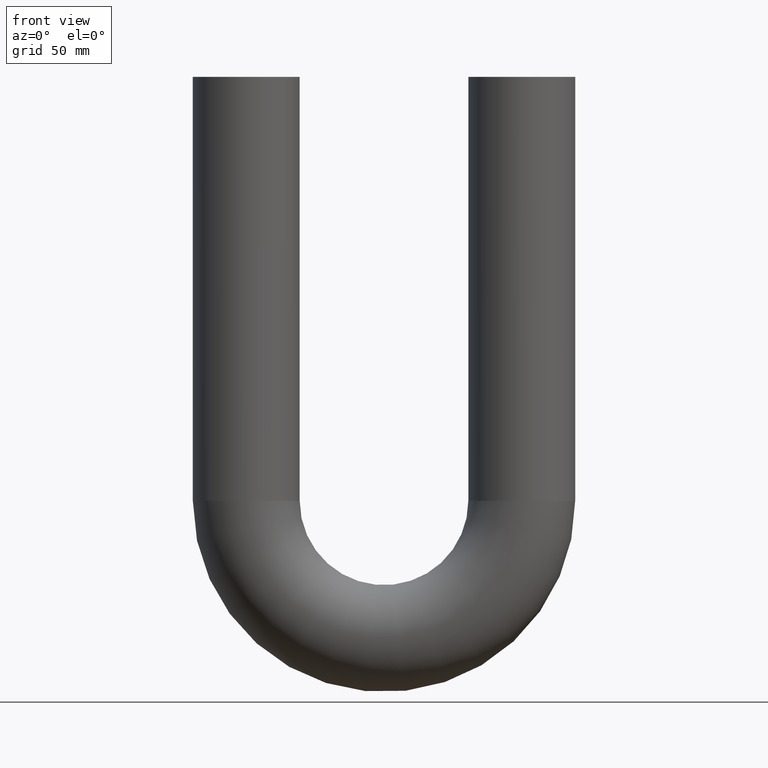
[diagram: clean part render]
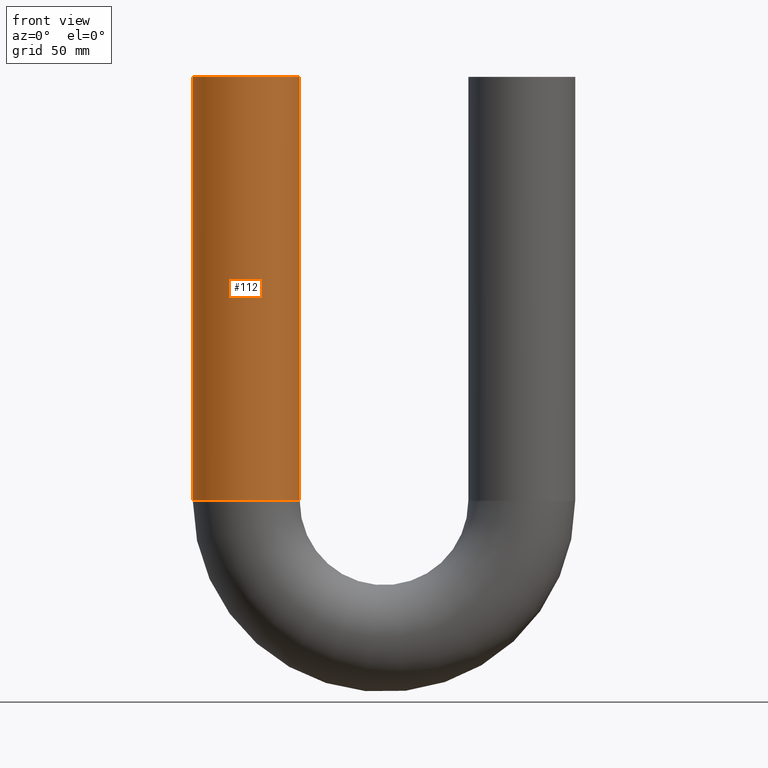
[diagram: same view with one face highlighted and labeled with its STEP entity id]
A machine part, front view. The second image highlights one B-rep face of the part: STEP entity #112.
In plain terms, the highlighted cylindrical surface (bore or boss wall) has radius 25.4 mm, axis along (-0, -0, 1).
Its self-contained STEP definition (entity closure, byte-faithful):
#112=ADVANCED_FACE('',(#184,#186),#188,.T.);
#184=FACE_OUTER_BOUND('',#185,.T.);
#185=EDGE_LOOP('',(#214));
#186=FACE_OUTER_BOUND('',#187,.T.);
#187=EDGE_LOOP('',(#215));
#188=CYLINDRICAL_SURFACE('',#189,25.4);
#189=AXIS2_PLACEMENT_3D('',#190,#191,#192);
#190=CARTESIAN_POINT('',(-65.,0.,200.));
#191=DIRECTION('',(-2.1316282072803E-016,-0.,1.));
#192=DIRECTION('',(0.,1.,0.));
#214=ORIENTED_EDGE('',*,*,#223,.F.);
#215=ORIENTED_EDGE('',*,*,#225,.T.);
#223=EDGE_CURVE('',#236,#236,#237,.T.);
#225=EDGE_CURVE('',#240,#240,#241,.T.);
#236=VERTEX_POINT('',#267);
#237=CIRCLE('',#268,25.4);
#240=VERTEX_POINT('',#277);
#241=CIRCLE('',#278,25.4);
#267=CARTESIAN_POINT('',(-65.,25.4,200.));
#268=AXIS2_PLACEMENT_3D('',#269,#270,#271);
#269=CARTESIAN_POINT('',(-65.,0.,200.));
#270=DIRECTION('',(-2.1316282072803E-016,0.,1.));
#271=DIRECTION('',(0.,1.,0.));
#277=CARTESIAN_POINT('',(-65.,25.4,0.));
#278=AXIS2_PLACEMENT_3D('',#279,#280,#281);
#279=CARTESIAN_POINT('',(-65.,0.,0.));
#280=DIRECTION('',(-2.1316282072803E-016,0.,1.));
#281=DIRECTION('',(0.,1.,0.));